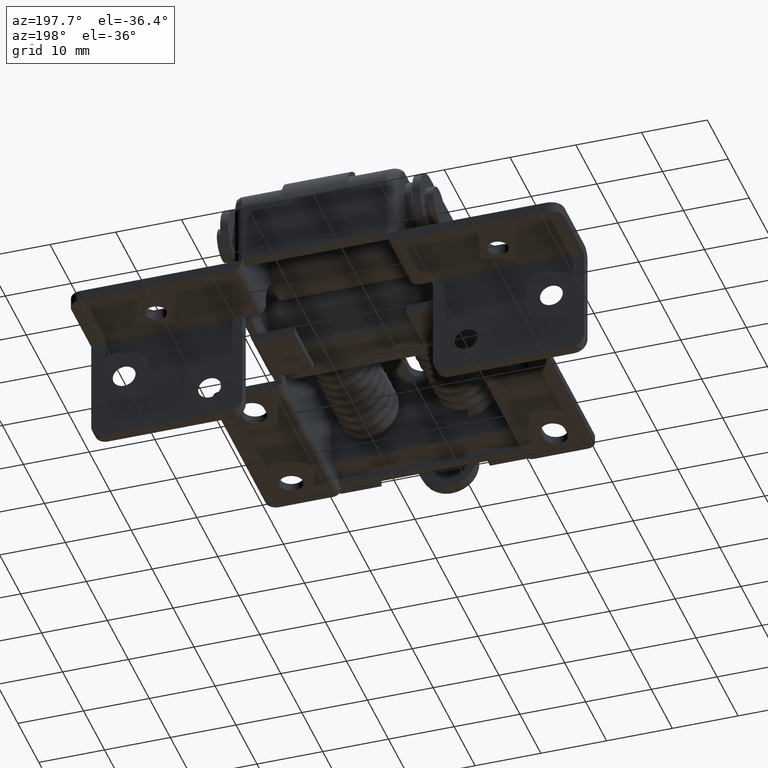
[diagram: clean part render]
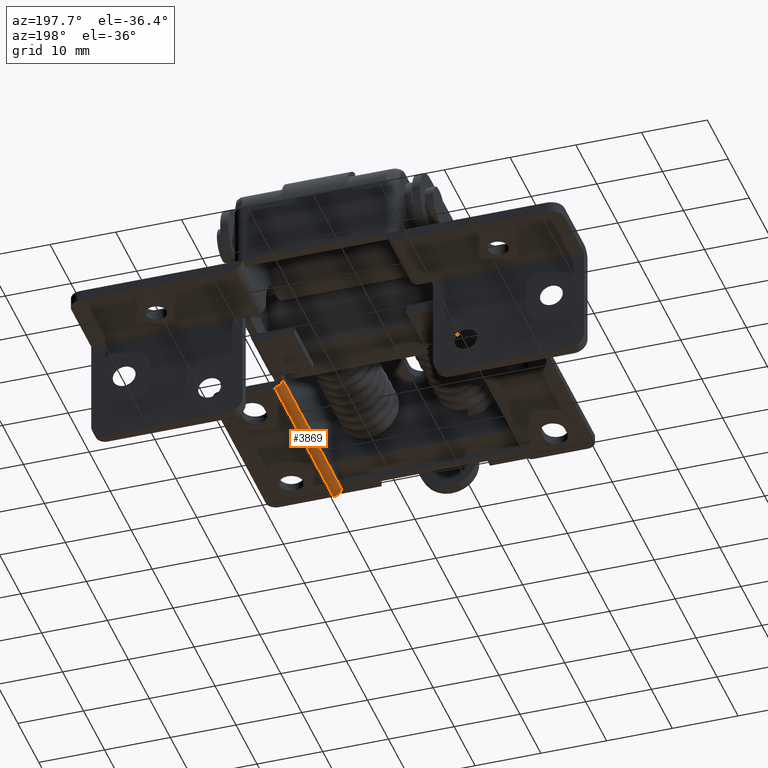
[diagram: same view with one face highlighted and labeled with its STEP entity id]
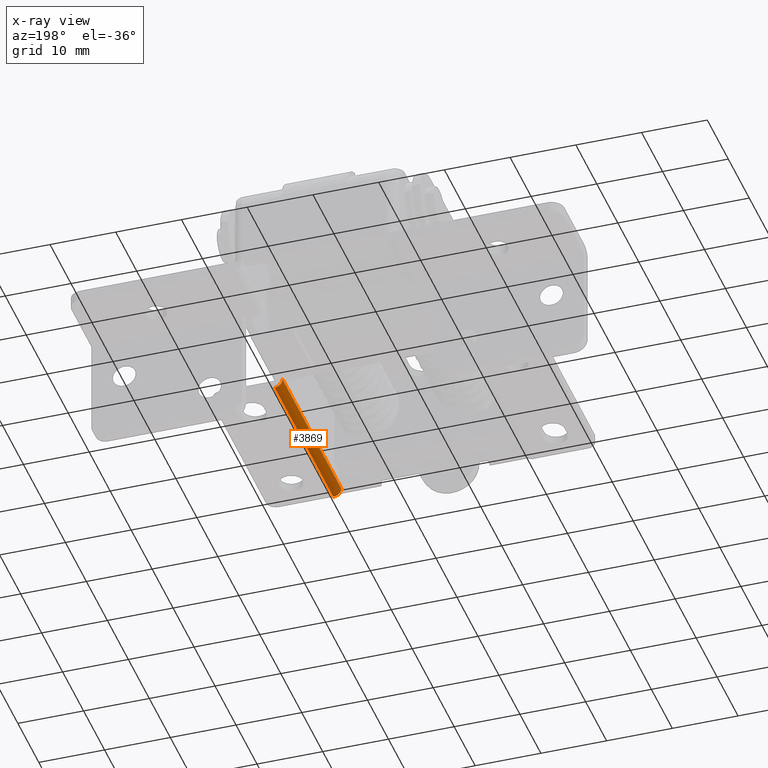
[diagram: x-ray of the same camera — body ghosted, the highlighted face saturated]
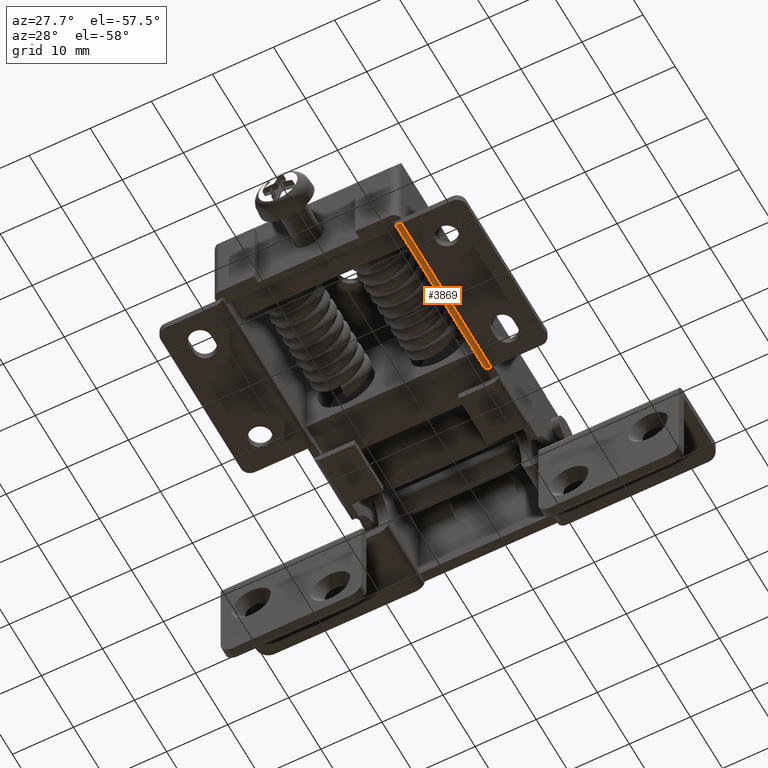
[diagram: same view with one face highlighted and labeled with its STEP entity id]
A machine part, auxiliary view. The second image highlights one B-rep face of the part: STEP entity #3869.
The next image is the same camera in x-ray: the body ghosted, the highlighted face saturated — about 0% of this face is hidden behind the body in this view.
A second angle (auxiliary view) of the same face is appended — the face is thin or edge-on in the first view.
In plain terms, the highlighted cylindrical surface (edge-blend (fillet) strip) has radius 1.2 mm, axis along (0, -1, -0).
Its self-contained STEP definition (entity closure, byte-faithful):
#430 = EDGE_CURVE ( 'NONE', #9049, #1664, #8560, .T. ) ;
#437 = DIRECTION ( 'NONE',  ( -0.0000000000000000000, -0.0000000000000000000, -1.000000000000000000 ) ) ;
#457 = ORIENTED_EDGE ( 'NONE', *, *, #5732, .F. ) ;
#652 = VECTOR ( 'NONE', #6792, 1000.000000000000000 ) ;
#909 = LINE ( 'NONE', #1709, #652 ) ;
#1392 = CIRCLE ( 'NONE', #5214, 1.200000000000001500 ) ;
#1540 = EDGE_LOOP ( 'NONE', ( #457, #8218, #3722, #6142 ) ) ;
#1664 = VERTEX_POINT ( 'NONE', #8271 ) ;
#1709 = CARTESIAN_POINT ( 'NONE',  ( 15.19999999999999900, 11.00000000000000000, -21.00000000000000000 ) ) ;
#2394 = AXIS2_PLACEMENT_3D ( 'NONE', #2855, #8843, #3724 ) ;
#2500 = CARTESIAN_POINT ( 'NONE',  ( 14.00000000000019900, 9.799999999999890600, -49.00000000000000000 ) ) ;
#2855 = CARTESIAN_POINT ( 'NONE',  ( 15.19999999999999900, 9.799999999999890600, -21.00000000000000000 ) ) ;
#2948 = CARTESIAN_POINT ( 'NONE',  ( 14.00000000000019900, 9.799999999999998900, -21.00000000000000000 ) ) ;
#3643 = CARTESIAN_POINT ( 'NONE',  ( 15.19999999999999900, 11.00000000000000000, -49.00000000000000000 ) ) ;
#3722 = ORIENTED_EDGE ( 'NONE', *, *, #5650, .F. ) ;
#3724 = DIRECTION ( 'NONE',  ( -1.000000000000000000, 1.445602896647339500E-015, 0.0000000000000000000 ) ) ;
#3869 = ADVANCED_FACE ( 'NONE', ( #4709 ), #8735, .T. ) ;
#3996 = VECTOR ( 'NONE', #6121, 1000.000000000000000 ) ;
#4508 = DIRECTION ( 'NONE',  ( 0.0000000000000000000, 0.0000000000000000000, -1.000000000000000000 ) ) ;
#4572 = CARTESIAN_POINT ( 'NONE',  ( 15.19999999999999900, 11.00000000000000000, -21.00000000000000000 ) ) ;
#4709 = FACE_OUTER_BOUND ( 'NONE', #1540, .T. ) ;
#5214 = AXIS2_PLACEMENT_3D ( 'NONE', #5475, #437, #6346 ) ;
#5475 = CARTESIAN_POINT ( 'NONE',  ( 15.19999999999999900, 9.799999999999890600, -49.00000000000000000 ) ) ;
#5609 = VERTEX_POINT ( 'NONE', #3643 ) ;
#5650 = EDGE_CURVE ( 'NONE', #10862, #9049, #6147, .T. ) ;
#5732 = EDGE_CURVE ( 'NONE', #1664, #5609, #1392, .T. ) ;
#6121 = DIRECTION ( 'NONE',  ( 0.0000000000000000000, 0.0000000000000000000, -1.000000000000000000 ) ) ;
#6142 = ORIENTED_EDGE ( 'NONE', *, *, #10452, .F. ) ;
#6147 = CIRCLE ( 'NONE', #2394, 1.199999999999999700 ) ;
#6153 = DIRECTION ( 'NONE',  ( -1.000000000000000000, 0.0000000000000000000, 0.0000000000000000000 ) ) ;
#6346 = DIRECTION ( 'NONE',  ( 1.000000000000000000, 0.0000000000000000000, 0.0000000000000000000 ) ) ;
#6792 = DIRECTION ( 'NONE',  ( -0.0000000000000000000, -0.0000000000000000000, 1.000000000000000000 ) ) ;
#7895 = CARTESIAN_POINT ( 'NONE',  ( 15.19999999999999900, 9.799999999999890600, 0.0000000000000000000 ) ) ;
#8218 = ORIENTED_EDGE ( 'NONE', *, *, #430, .F. ) ;
#8271 = CARTESIAN_POINT ( 'NONE',  ( 14.00000000000019900, 9.799999999999998900, -49.00000000000000000 ) ) ;
#8560 = LINE ( 'NONE', #2500, #3996 ) ;
#8673 = AXIS2_PLACEMENT_3D ( 'NONE', #7895, #4508, #6153 ) ;
#8735 = CYLINDRICAL_SURFACE ( 'NONE', #8673, 1.199999999999999700 ) ;
#8843 = DIRECTION ( 'NONE',  ( -0.0000000000000000000, -0.0000000000000000000, 1.000000000000000000 ) ) ;
#9049 = VERTEX_POINT ( 'NONE', #2948 ) ;
#10452 = EDGE_CURVE ( 'NONE', #5609, #10862, #909, .T. ) ;
#10862 = VERTEX_POINT ( 'NONE', #4572 ) ;